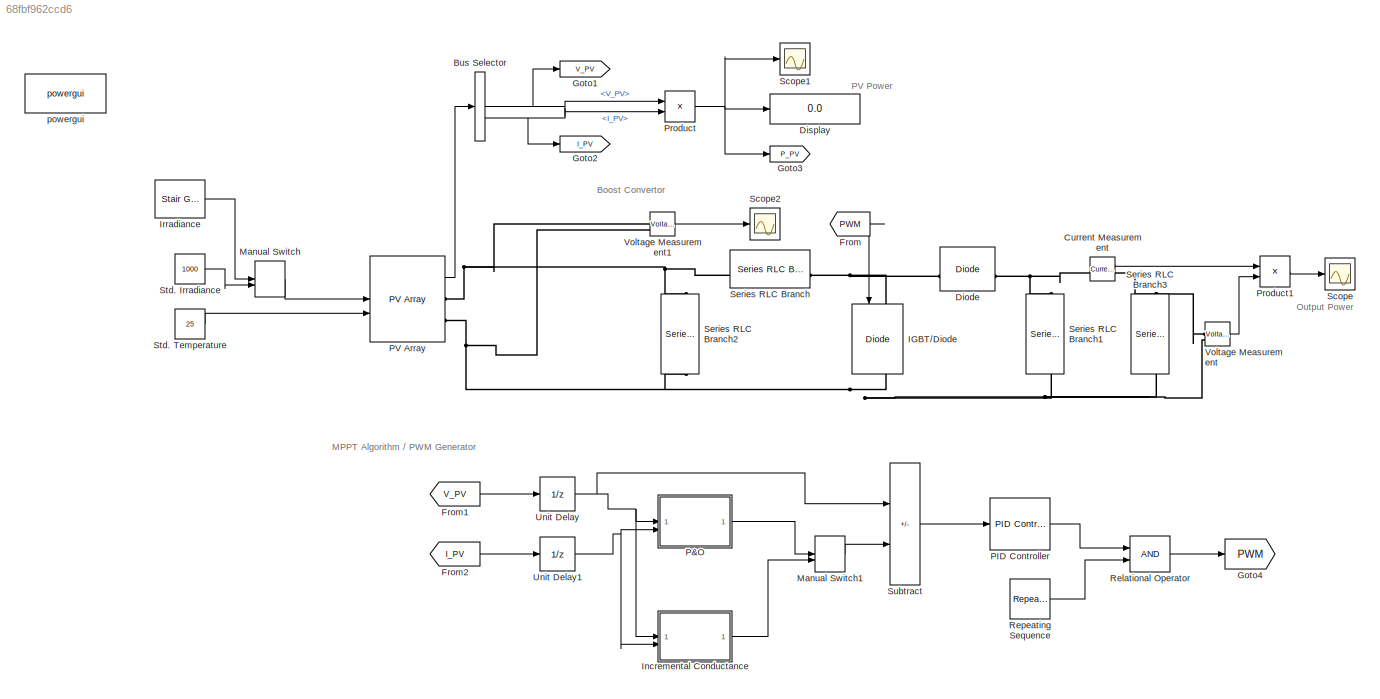
MODEL slx_68fbf962ccd6
KIND model
CONFIG AbsTol = auto
CONFIG EnableMultiTasking = off
CONFIG FixedStep = auto
CONFIG MaxStep = auto
CONFIG MinStep = auto
CONFIG RelTol = 1e-3
CONFIG SampleTimeConstraint = Unconstrained
CONFIG SolverName = ode23t
CONFIG StartTime = 0.0
CONFIG StopTime = 0.8
BLOCK [BusSelector] Bus Selector
  OutputSignals = V_PV,I_PV
BLOCK [Reference] Current Measurement  REF=spsCurrentMeasurementLib/Current Measurement
  LibrarySourceBlock = sps_lib/Sensors and Measurements/Current Measurement
  SourceBlock = spsCurrentMeasurementLib/Current Measurement
  SourceType = Current Measurement
  UserDataPersistent = on
BLOCK [Reference] Diode  REF=spsDiodeLib/Diode
  LibrarySourceBlock = sps_lib/Power Electronics/Diode
  SourceBlock = spsDiodeLib/Diode
  SourceType = Diode
BLOCK [Display] Display
  Decimation = 1
BLOCK [From] From
  GotoTag = PWM
BLOCK [From] From1
  GotoTag = V_PV
BLOCK [From] From2
  GotoTag = I_PV
BLOCK [Goto] Goto1
  GotoTag = V_PV
BLOCK [Goto] Goto2
  GotoTag = I_PV
BLOCK [Goto] Goto3
  GotoTag = P_PV
BLOCK [Goto] Goto4
  GotoTag = PWM
BLOCK [Reference] IGBT//Diode  REF=spsIGBTDiodeLib/IGBT//Diode
  LibrarySourceBlock = sps_lib/Power Electronics/IGBT//Diode
  NameLocation = left
  SourceBlock = spsIGBTDiodeLib/IGBT//Diode
  SourceType = IGBT/Diode
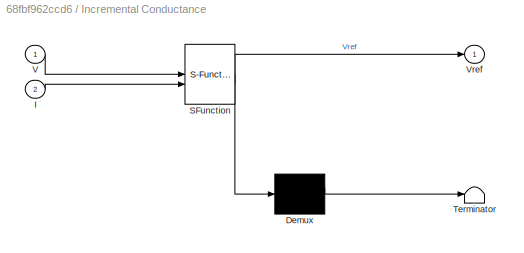
BLOCK [SubSystem] Incremental Conductance
  ErrorFcn = Stateflow.Translate.translate
  LibrarySourceBlock = simulink/User-Defined\nFunctions/MATLAB Function
  PermitHierarchicalResolution = ExplicitOnly
  SFBlockType = MATLAB Function
  TreatAsAtomicUnit = on
BLOCK [Demux] Incremental Conductance/ Demux 
  Outputs = 1
BLOCK [S-Function] Incremental Conductance/ SFunction 
  EnableBusSupport = on
  FunctionName = sf_sfun
  PortCounts = [2 2]
  SFcnIsStateOwnerBlock = off
  SFunctionDeploymentMode = off
  Tag = Stateflow S-Function 1
BLOCK [Terminator] Incremental Conductance/ Terminator 
BLOCK [Inport] Incremental Conductance/I
  Port = 2
BLOCK [Inport] Incremental Conductance/V
BLOCK [Outport] Incremental Conductance/Vref
BLOCK [Reference] Irradiance  REF=spsStairGeneratorLib/Stair
Generator
  LibrarySourceBlock = sps_lib/Sources/Signal Generator Sources/Stair\nGenerator
  SourceBlock = spsStairGeneratorLib/Stair\nGenerator
  SourceType = Stair Generator
BLOCK [ManualSwitch] Manual Switch
  CurrentSetting = 0
BLOCK [ManualSwitch] Manual Switch1
  CurrentSetting = 0
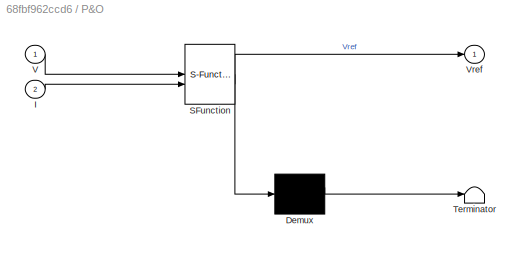
BLOCK [SubSystem] P&O
  ErrorFcn = Stateflow.Translate.translate
  LibrarySourceBlock = simulink/User-Defined\nFunctions/MATLAB Function
  PermitHierarchicalResolution = ExplicitOnly
  SFBlockType = MATLAB Function
  TreatAsAtomicUnit = on
BLOCK [Demux] P&O/ Demux 
  Outputs = 1
BLOCK [S-Function] P&O/ SFunction 
  EnableBusSupport = on
  FunctionName = sf_sfun
  PortCounts = [2 2]
  SFcnIsStateOwnerBlock = off
  SFunctionDeploymentMode = off
  Tag = Stateflow S-Function 2
BLOCK [Terminator] P&O/ Terminator 
BLOCK [Inport] P&O/I
  Port = 2
BLOCK [Inport] P&O/V
BLOCK [Outport] P&O/Vref
BLOCK [Reference] PID Controller  REF=slpidlib/PID Controller
  LibrarySourceBlock = simulink/Continuous/PID Controller
  SourceBlock = slpidlib/PID Controller
  SourceType = PID 1dof
BLOCK [Reference] PV Array  REF=spsPVArrayLib/PV Array
  LibrarySourceBlock = sps_lib/Sources/PV Array
  SourceBlock = spsPVArrayLib/PV Array
  SourceType = PV array
BLOCK [Product] Product
BLOCK [Product] Product1
BLOCK [RelationalOperator] Relational Operator
  InputSameDT = off
  OutDataTypeStr = boolean
  RndMeth = Simplest
BLOCK [Reference] Repeating Sequence  REF=simulink/Sources/Repeating
Sequence
  SourceBlock = simulink/Sources/Repeating\nSequence
  SourceType = Repeating table
BLOCK [Scope] Scope
  Floating = off
  NumInputPorts = 1
  ScopeSpecificationString = Simulink.scopes.TimeScopeBlockCfg('CurrentConfiguration', extmgr.ConfigurationSet(extmgr.Configuration('Core','General UI',true),extmgr.Configuration('Core','Source UI',true),extmgr.Configuration('Sources','WiredSimulink',true,'DataLoggingVariableName','ScopeData1'),extmgr.Configuration('Visuals','Time Domain',true,'SerializedDisplays',{struct('MinYLimReal','-12574.12006','MaxYLimReal','113167.080...<+1460ch>
BLOCK [Scope] Scope1
  Floating = off
  NumInputPorts = 1
  ScopeSpecificationString = Simulink.scopes.TimeScopeBlockCfg('CurrentConfiguration', extmgr.ConfigurationSet(extmgr.Configuration('Core','General UI',true),extmgr.Configuration('Core','Source UI',true),extmgr.Configuration('Sources','WiredSimulink',true,'DataLoggingVariableName','ScopeData1'),extmgr.Configuration('Visuals','Time Domain',true,'SerializedDisplays',{struct('MinYLimReal','-100351.93225','MaxYLimReal','137805.27...<+1439ch>
BLOCK [Scope] Scope2
  Floating = off
  NumInputPorts = 1
  ScopeSpecificationString = Simulink.scopes.TimeScopeBlockCfg('CurrentConfiguration', extmgr.ConfigurationSet(extmgr.Configuration('Core','General UI',true),extmgr.Configuration('Core','Source UI',true),extmgr.Configuration('Sources','WiredSimulink',true,'DataLoggingVariableName','ScopeData2'),extmgr.Configuration('Visuals','Time Domain',true,'SerializedDisplays',{struct('MinYLimReal','-42.11494','MaxYLimReal','381.2524','YL...<+1733ch>
BLOCK [Reference] Series RLC Branch  REF=spsSeriesRLCBranchLib/Series RLC Branch
  LibrarySourceBlock = sps_lib/Passives/Series RLC Branch
  SourceBlock = spsSeriesRLCBranchLib/Series RLC Branch
  SourceType = Series RLC Branch
BLOCK [Reference] Series RLC Branch1  REF=spsSeriesRLCBranchLib/Series RLC Branch
  LibrarySourceBlock = sps_lib/Passives/Series RLC Branch
  NameLocation = left
  SourceBlock = spsSeriesRLCBranchLib/Series RLC Branch
  SourceType = Series RLC Branch
BLOCK [Reference] Series RLC Branch2  REF=spsSeriesRLCBranchLib/Series RLC Branch
  LibrarySourceBlock = sps_lib/Passives/Series RLC Branch
  NameLocation = left
  SourceBlock = spsSeriesRLCBranchLib/Series RLC Branch
  SourceType = Series RLC Branch
BLOCK [Reference] Series RLC Branch3  REF=spsSeriesRLCBranchLib/Series RLC Branch
  LibrarySourceBlock = sps_lib/Passives/Series RLC Branch
  NameLocation = left
  SourceBlock = spsSeriesRLCBranchLib/Series RLC Branch
  SourceType = Series RLC Branch
BLOCK [Constant] Std. Irradiance
  Value = 1000
BLOCK [Constant] Std. Temperature
  Value = 25
BLOCK [Sum] Subtract
  IconShape = rectangular
  Inputs = +-
BLOCK [UnitDelay] Unit Delay
  HasFrameUpgradeWarning = on
  SampleTime = 1e-4
BLOCK [UnitDelay] Unit Delay1
  HasFrameUpgradeWarning = on
  SampleTime = 1e-4
BLOCK [Reference] Voltage Measurement  REF=spsVoltageMeasurementLib/Voltage Measurement
  LibrarySourceBlock = sps_lib/Sensors and Measurements/Voltage Measurement
  SourceBlock = spsVoltageMeasurementLib/Voltage Measurement
  SourceType = Voltage Measurement
  UserDataPersistent = on
BLOCK [Reference] Voltage Measurement1  REF=spsVoltageMeasurementLib/Voltage Measurement
  LibrarySourceBlock = sps_lib/Sensors and Measurements/Voltage Measurement
  SourceBlock = spsVoltageMeasurementLib/Voltage Measurement
  SourceType = Voltage Measurement
  UserDataPersistent = on
BLOCK [Reference] powergui  REF=sps_lib/powergui
  Priority = 1
  SourceBlock = sps_lib/powergui
  SourceType = PSB option menu block
ANNOTATION (root): Boost Convertor
ANNOTATION (root): MPPT Algorithm / PWM Generator
ANNOTATION (root): Output Power
ANNOTATION (root): PV Power
NET Bus Selector:1 -> Goto1:1, Product:1
NET Bus Selector:2 -> Goto2:1, Product:2
LINE Current Measurement:1 -> Product1:1
LINE From1:1 -> Unit Delay:1
LINE From2:1 -> Unit Delay1:1
LINE From:1 -> IGBT//Diode:1
LINE Incremental Conductance:1 -> Manual Switch1:2
LINE Irradiance:1 -> Manual Switch:1
LINE Manual Switch1:1 -> Subtract:2
LINE Manual Switch:1 -> PV Array:1
LINE P&O:1 -> Manual Switch1:1
LINE PID Controller:1 -> Relational Operator:1
LINE PV Array:1 -> Bus Selector:1
LINE Product1:1 -> Scope:1
NET Product:1 -> Display:1, Goto3:1, Scope1:1
LINE Relational Operator:1 -> Goto4:1
LINE Repeating Sequence:1 -> Relational Operator:2
LINE Std. Irradiance:1 -> Manual Switch:2
LINE Std. Temperature:1 -> PV Array:2
LINE Subtract:1 -> PID Controller:1
NET Unit Delay1:1 -> Incremental Conductance:2, P&O:2
NET Unit Delay:1 -> Incremental Conductance:1, P&O:1, Subtract:1
LINE Voltage Measurement1:1 -> Scope2:1
LINE Voltage Measurement:1 -> Product1:2
PNET net1: Current Measurement:LConn1 -- Diode:RConn1 -- Series RLC Branch1:LConn1
PNET net2: Current Measurement:RConn1 -- Series RLC Branch3:LConn1 -- Voltage Measurement:LConn1
PNET net3: Diode:LConn1 -- IGBT//Diode:LConn1 -- Series RLC Branch:RConn1
PNET net4: IGBT//Diode:RConn1 -- PV Array:RConn2 -- Series RLC Branch1:RConn1 -- Series RLC Branch2:RConn1 -- Series RLC Branch3:RConn1 -- Voltage Measurement1:LConn2 -- Voltage Measurement:LConn2
PNET net5: PV Array:RConn1 -- Series RLC Branch2:LConn1 -- Series RLC Branch:LConn1 -- Voltage Measurement1:LConn1
note: NET lines group one-source signal fan-out (src -> all destinations, sorted); 1:1 wires keep LINE; PNET lines group multi-terminal physical nets as a canonical sorted terminal list (undirected conserving connections); 2-terminal nets keep the pairwise PLINE form
CHART P&O states=1 transitions=1
  STATE_LABEL 'eML_blk_kernel()'
  STATE_LABEL "SCRIPT:\nfunction Vref = RefGen(V,I)\n\nVrefmax = 363;\nVrefmin = 0;\nVrefinit = 300;\ndeltaVref = 1;\n\npersistent Vold Pold Vrefold;\ndataType = 'double';\n\nif isempty(Vold)\n    Vold = 0;\n    Pold = 0;\n    Vrefold = Vrefinit;\n\nend\n\nP = V*I;\ndV = V-Vold;\ndP = P-Pold;\n\nif dP ~= 0\n    if dP<0\n        if dV<0\n            Vref = Vrefold + deltaVref;\n        else \n            Vref = Vrefold - deltaVref;\n       ...<+289ch>"
CHART Incremental Conductance states=1 transitions=1
  STATE_LABEL 'eML_blk_kernel()'
  STATE_LABEL "SCRIPT:\nfunction Vref= RefGen(V,I)\n\nVrefmax = 363;\nVrefmin = 0;\nVrefinit = 300;\ndeltaVref = 1;\n\npersistent Vold Iold Vrefold;\ndataType = 'double';\n\nif isempty(Vold)\n    Vold = 0;\n    Iold = 0;\n    Vrefold = Vrefinit;\nend\n\ndV = V - Vold;\ndI = I - Iold;\n\nif(dV == 0)\n    if(dI == 0)\n        Vref = Vrefold;\n    elseif (dI>0)\n        Vref = Vrefold + deltaVref;\n    else\n        Vref = Vrefold - deltaVr...<+224ch>"
CHART  states=0 transitions=0
CHART  states=0 transitions=0
